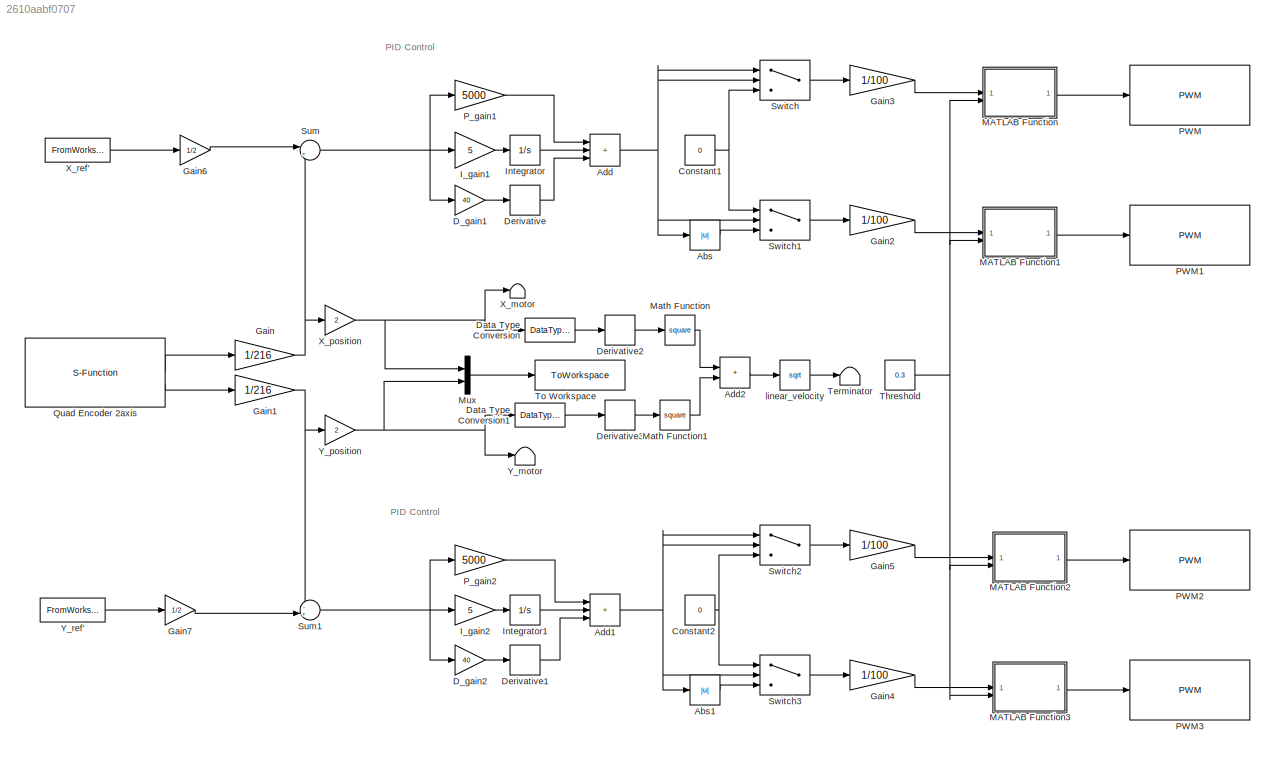
MODEL slx_2610aabf0707
KIND model
CONFIG AbsTol = auto
CONFIG EnableMultiTasking = on
CONFIG FixedStep = 0.001
CONFIG MaxStep = auto
CONFIG MinStep = auto
CONFIG RelTol = 1e-3
CONFIG SampleTimeConstraint = Unconstrained
CONFIG SolverName = FixedStepAuto
CONFIG StartTime = 0.0
CONFIG StopTime = inf
BLOCK [Abs] Abs
  SaturateOnIntegerOverflow = off
BLOCK [Abs] Abs1
  SaturateOnIntegerOverflow = off
BLOCK [Sum] Add
  IconShape = rectangular
  Inputs = +++
BLOCK [Sum] Add1
  IconShape = rectangular
  Inputs = +++
BLOCK [Sum] Add2
  IconShape = rectangular
BLOCK [Constant] Constant1
  Value = 0
BLOCK [Constant] Constant2
  Value = 0
BLOCK [Gain] D_gain1
  Gain = 40
BLOCK [Gain] D_gain2
  Gain = 40
BLOCK [DataTypeConversion] Data Type Conversion
  OutDataTypeStr = double
  RndMeth = Floor
  SaturateOnIntegerOverflow = off
BLOCK [DataTypeConversion] Data Type Conversion1
  OutDataTypeStr = double
  RndMeth = Floor
  SaturateOnIntegerOverflow = off
BLOCK [Derivative] Derivative
BLOCK [Derivative] Derivative1
BLOCK [Derivative] Derivative2
BLOCK [Derivative] Derivative3
BLOCK [Gain] Gain
  Gain = 1/216
BLOCK [Gain] Gain1
  Gain = 1/216
BLOCK [Gain] Gain2
  Gain = 1/100
BLOCK [Gain] Gain3
  Gain = 1/100
BLOCK [Gain] Gain4
  Gain = 1/100
BLOCK [Gain] Gain5
  Gain = 1/100
BLOCK [Gain] Gain6
  Gain = 1/2
BLOCK [Gain] Gain7
  Gain = 1/2
BLOCK [Gain] I_gain1
  Gain = 5
BLOCK [Gain] I_gain2
  Gain = 5
BLOCK [Integrator] Integrator
BLOCK [Integrator] Integrator1
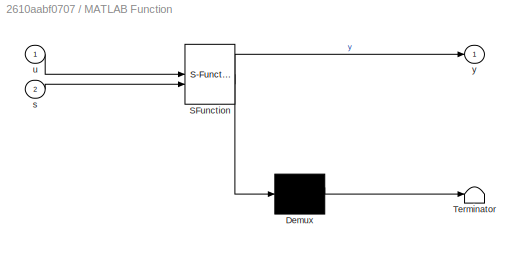
BLOCK [SubSystem] MATLAB Function
  ErrorFcn = Stateflow.Translate.translate
  PermitHierarchicalResolution = ExplicitOnly
  SFBlockType = MATLAB Function
  TreatAsAtomicUnit = on
BLOCK [Demux] MATLAB Function/ Demux 
  Outputs = 1
BLOCK [S-Function] MATLAB Function/ SFunction 
  EnableBusSupport = on
  FunctionName = sf_sfun
  PortCounts = [2 2]
  SFcnIsStateOwnerBlock = off
  SFunctionDeploymentMode = off
  Tag = Stateflow S-Function 2
BLOCK [Terminator] MATLAB Function/ Terminator 
BLOCK [Inport] MATLAB Function/s
  Port = 2
BLOCK [Inport] MATLAB Function/u
BLOCK [Outport] MATLAB Function/y
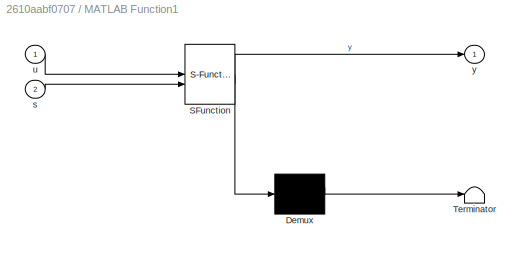
BLOCK [SubSystem] MATLAB Function1
  ErrorFcn = Stateflow.Translate.translate
  PermitHierarchicalResolution = ExplicitOnly
  SFBlockType = MATLAB Function
  TreatAsAtomicUnit = on
BLOCK [Demux] MATLAB Function1/ Demux 
  Outputs = 1
BLOCK [S-Function] MATLAB Function1/ SFunction 
  EnableBusSupport = on
  FunctionName = sf_sfun
  PortCounts = [2 2]
  SFcnIsStateOwnerBlock = off
  SFunctionDeploymentMode = off
  Tag = Stateflow S-Function 1
BLOCK [Terminator] MATLAB Function1/ Terminator 
BLOCK [Inport] MATLAB Function1/s
  Port = 2
BLOCK [Inport] MATLAB Function1/u
BLOCK [Outport] MATLAB Function1/y
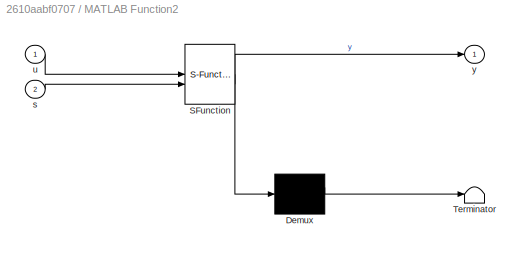
BLOCK [SubSystem] MATLAB Function2
  ErrorFcn = Stateflow.Translate.translate
  PermitHierarchicalResolution = ExplicitOnly
  SFBlockType = MATLAB Function
  TreatAsAtomicUnit = on
BLOCK [Demux] MATLAB Function2/ Demux 
  Outputs = 1
BLOCK [S-Function] MATLAB Function2/ SFunction 
  EnableBusSupport = on
  FunctionName = sf_sfun
  PortCounts = [2 2]
  SFcnIsStateOwnerBlock = off
  SFunctionDeploymentMode = off
  Tag = Stateflow S-Function 3
BLOCK [Terminator] MATLAB Function2/ Terminator 
BLOCK [Inport] MATLAB Function2/s
  Port = 2
BLOCK [Inport] MATLAB Function2/u
BLOCK [Outport] MATLAB Function2/y
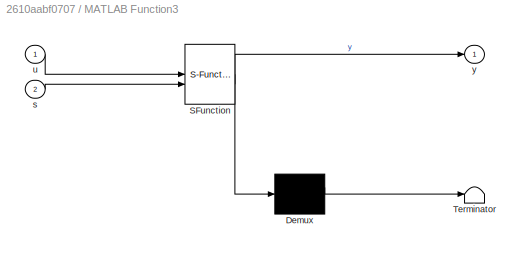
BLOCK [SubSystem] MATLAB Function3
  ErrorFcn = Stateflow.Translate.translate
  PermitHierarchicalResolution = ExplicitOnly
  SFBlockType = MATLAB Function
  TreatAsAtomicUnit = on
BLOCK [Demux] MATLAB Function3/ Demux 
  Outputs = 1
BLOCK [S-Function] MATLAB Function3/ SFunction 
  EnableBusSupport = on
  FunctionName = sf_sfun
  PortCounts = [2 2]
  SFcnIsStateOwnerBlock = off
  SFunctionDeploymentMode = off
  Tag = Stateflow S-Function 4
BLOCK [Terminator] MATLAB Function3/ Terminator 
BLOCK [Inport] MATLAB Function3/s
  Port = 2
BLOCK [Inport] MATLAB Function3/u
BLOCK [Outport] MATLAB Function3/y
BLOCK [Math] Math Function
  Operator = square
BLOCK [Math] Math Function1
  Operator = square
BLOCK [Mux] Mux
  DisplayOption = bar
  Inputs = 2
BLOCK [Reference] PWM  REF=raspberrypiBasiclib/PWM
  SourceBlock = raspberrypiBasiclib/PWM
  SourceType = raspi.internal.PWMBlock
BLOCK [Reference] PWM1  REF=raspberrypiBasiclib/PWM
  SourceBlock = raspberrypiBasiclib/PWM
  SourceType = raspi.internal.PWMBlock
BLOCK [Reference] PWM2  REF=raspberrypiBasiclib/PWM
  SourceBlock = raspberrypiBasiclib/PWM
  SourceType = raspi.internal.PWMBlock
BLOCK [Reference] PWM3  REF=raspberrypiBasiclib/PWM
  SourceBlock = raspberrypiBasiclib/PWM
  SourceType = raspi.internal.PWMBlock
BLOCK [Gain] P_gain1
  Gain = 5000
BLOCK [Gain] P_gain2
  Gain = 5000
BLOCK [S-Function] Quad Encoder 2axis
  CopyFcn = set_param(gcbh,'LinkStatus','none')
  EnableBusSupport = off
  FunctionName = Quad_Encoder_sfn
  InitFcn = try, set_param(gcb,'FunctionName','Quad_Encoder_sfn'), end
  OpenFcn = sfunctionwizard(gcbh)
  Parameters = uint8(0),uint8(17),uint8(27),uint8(1),uint8(23),uint8(24)
  PreSaveFcn = try, set_param(gcb,'FunctionName','Quad_Encoder_sfn'), end
  SFcnIsStateOwnerBlock = off
  SFunctionDeploymentMode = off
  SFunctionModules = Quad_Encoder_sfn_wrapper.c
BLOCK [Sum] Sum
  Inputs = |+-
BLOCK [Sum] Sum1
  Inputs = -+|
BLOCK [Switch] Switch
  Criteria = u2 > Threshold
  InputSameDT = off
  SaturateOnIntegerOverflow = off
BLOCK [Switch] Switch1
  Criteria = u2 > Threshold
  InputSameDT = off
  SaturateOnIntegerOverflow = off
BLOCK [Switch] Switch2
  Criteria = u2 > Threshold
  InputSameDT = off
  SaturateOnIntegerOverflow = off
BLOCK [Switch] Switch3
  Criteria = u2 > Threshold
  InputSameDT = off
  SaturateOnIntegerOverflow = off
BLOCK [Terminator] Terminator
BLOCK [Constant] Threshold
  Value = 0.3
BLOCK [ToWorkspace] To Workspace
  FixptAsFi = on
  MaxDataPoints = inf
  SampleTime = -1
  SaveFormat = Timeseries
  VariableName = simout
BLOCK [Terminator] X_motor
BLOCK [Gain] X_position
  Gain = 2
BLOCK [FromWorkspace] X_ref'
  OutputAfterFinalValue = Holding final value
  VariableName = data_x
BLOCK [Terminator] Y_motor
BLOCK [Gain] Y_position
  Gain = 2
BLOCK [FromWorkspace] Y_ref'
  OutputAfterFinalValue = Holding final value
  VariableName = data_y
BLOCK [Sqrt] linear_velocity
ANNOTATION (root): PID Control
LINE Abs1:1 -> Switch3:3
LINE Abs:1 -> Switch1:3
NET Add1:1 -> Abs1:1, Switch2:1, Switch2:2, Switch3:2
LINE Add2:1 -> linear_velocity:1
NET Add:1 -> Abs:1, Switch1:2, Switch:1, Switch:2
NET Constant1:1 -> Switch1:1, Switch:3
NET Constant2:1 -> Switch2:3, Switch3:1
LINE D_gain1:1 -> Derivative:1
LINE D_gain2:1 -> Derivative1:1
LINE Data Type Conversion1:1 -> Derivative3:1
LINE Data Type Conversion:1 -> Derivative2:1
LINE Derivative1:1 -> Add1:3
LINE Derivative2:1 -> Math Function:1
LINE Derivative3:1 -> Math Function1:1
LINE Derivative:1 -> Add:3
NET Gain1:1 -> Sum1:1, Y_position:1
LINE Gain2:1 -> MATLAB Function1:1
LINE Gain3:1 -> MATLAB Function:1
LINE Gain4:1 -> MATLAB Function3:1
LINE Gain5:1 -> MATLAB Function2:1
LINE Gain6:1 -> Sum:1
LINE Gain7:1 -> Sum1:2
NET Gain:1 -> Sum:2, X_position:1
LINE I_gain1:1 -> Integrator:1
LINE I_gain2:1 -> Integrator1:1
LINE Integrator1:1 -> Add1:2
LINE Integrator:1 -> Add:2
LINE MATLAB Function1:1 -> PWM1:1
LINE MATLAB Function2:1 -> PWM2:1
LINE MATLAB Function3:1 -> PWM3:1
LINE MATLAB Function:1 -> PWM:1
LINE Math Function1:1 -> Add2:2
LINE Math Function:1 -> Add2:1
LINE Mux:1 -> To Workspace:1
LINE P_gain1:1 -> Add:1
LINE P_gain2:1 -> Add1:1
LINE Quad Encoder 2axis:1 -> Gain:1
LINE Quad Encoder 2axis:2 -> Gain1:1
NET Sum1:1 -> D_gain2:1, I_gain2:1, P_gain2:1
NET Sum:1 -> D_gain1:1, I_gain1:1, P_gain1:1
LINE Switch1:1 -> Gain2:1
LINE Switch2:1 -> Gain5:1
LINE Switch3:1 -> Gain4:1
LINE Switch:1 -> Gain3:1
NET Threshold:1 -> MATLAB Function1:2, MATLAB Function2:2, MATLAB Function3:2, MATLAB Function:2
NET X_position:1 -> Data Type Conversion:1, Mux:1, X_motor:1
LINE X_ref':1 -> Gain6:1
NET Y_position:1 -> Data Type Conversion1:1, Mux:2, Y_motor:1
LINE Y_ref':1 -> Gain7:1
LINE linear_velocity:1 -> Terminator:1
note: NET lines group one-source signal fan-out (src -> all destinations, sorted); 1:1 wires keep LINE
CHART MATLAB Function states=1 transitions=1
  STATE_LABEL 'eML_blk_kernel()'
  STATE_LABEL 'SCRIPT:\nfunction y = calculate_f(u, s)\n\n    if u > 1\n        y = 1;\n    elseif u > s\n        y = u;\n    elseif u > s/2\n        y = s;\n    else \n        y = 0;\n    end\nend'
CHART MATLAB Function2 states=1 transitions=1
  STATE_LABEL 'eML_blk_kernel()'
  STATE_LABEL 'SCRIPT:\nfunction y = calculate_f(u, s)\n% u: 입력 신호\n% f: 출력 신호\n\n    if u > 1\n        y = 1;\n    elseif u > s\n        y = u;\n    elseif u > s/2\n        y = s;\n    else % u == 0\n        y = 0;\n    end\nend\n'  <repeated x3 — deduplicated; at blocks: MATLAB Function2, MATLAB Function3, MATLAB Function1>
CHART MATLAB Function3 states=1 transitions=1
  STATE_LABEL 'eML_blk_kernel()'
CHART MATLAB Function1 states=1 transitions=1
  STATE_LABEL 'eML_blk_kernel()'
CHART  states=0 transitions=0
CHART  states=0 transitions=0
CHART  states=0 transitions=0
CHART  states=0 transitions=0
